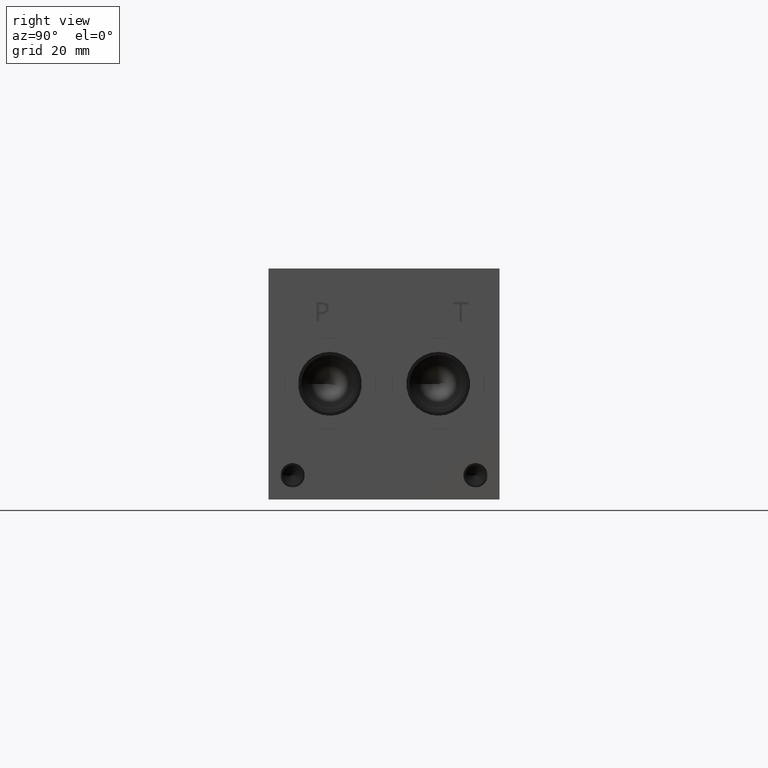
[diagram: clean part render]
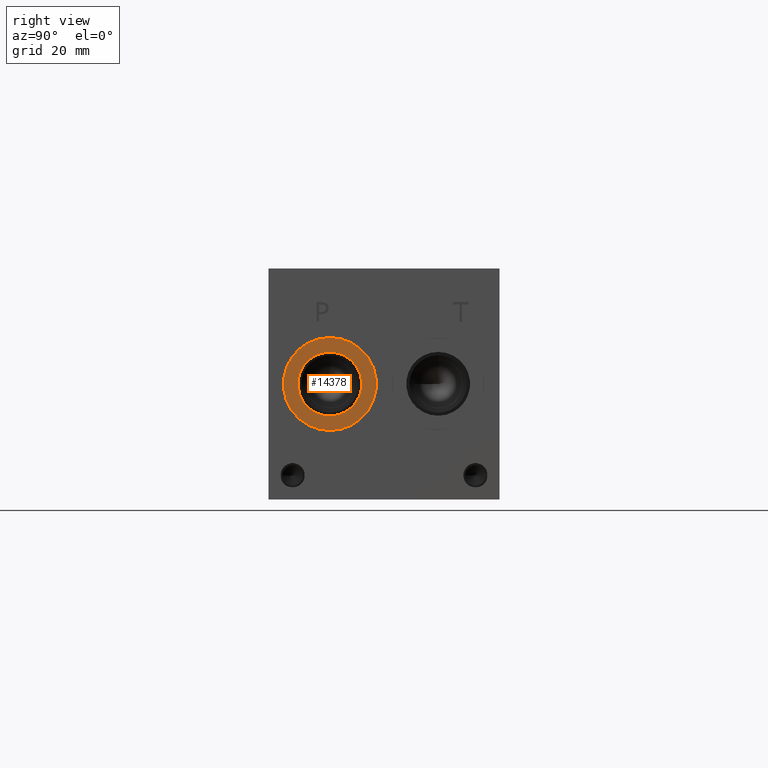
[diagram: same view with one face highlighted and labeled with its STEP entity id]
A machine part, right view. The second image highlights one B-rep face of the part: STEP entity #14378.
In plain terms, the highlighted planar face has unit normal (-1, 0, 0).
Its self-contained STEP definition (entity closure, byte-faithful):
#332=CIRCLE('',#15123,15.3416);
#333=CIRCLE('',#15124,15.3416);
#334=CIRCLE('',#15126,10.5283);
#335=CIRCLE('',#15127,10.5283);
#678=FACE_BOUND('',#2670,.T.);
#1832=FACE_OUTER_BOUND('',#2669,.T.);
#2669=EDGE_LOOP('',(#12074,#12075));
#2670=EDGE_LOOP('',(#12076,#12077));
#6540=VERTEX_POINT('',#24257);
#6541=VERTEX_POINT('',#24259);
#6542=VERTEX_POINT('',#24263);
#6543=VERTEX_POINT('',#24264);
#8470=EDGE_CURVE('',#6540,#6541,#332,.T.);
#8471=EDGE_CURVE('',#6541,#6540,#333,.T.);
#8472=EDGE_CURVE('',#6542,#6543,#334,.T.);
#8473=EDGE_CURVE('',#6543,#6542,#335,.T.);
#12074=ORIENTED_EDGE('',*,*,#8471,.F.);
#12075=ORIENTED_EDGE('',*,*,#8470,.F.);
#12076=ORIENTED_EDGE('',*,*,#8472,.T.);
#12077=ORIENTED_EDGE('',*,*,#8473,.T.);
#13242=PLANE('',#15125);
#14378=ADVANCED_FACE('',(#1832,#678),#13242,.F.);
#15123=AXIS2_PLACEMENT_3D('',#24260,#17852,#17853);
#15124=AXIS2_PLACEMENT_3D('',#24261,#17854,#17855);
#15125=AXIS2_PLACEMENT_3D('',#24262,#17856,#17857);
#15126=AXIS2_PLACEMENT_3D('',#24265,#17858,#17859);
#15127=AXIS2_PLACEMENT_3D('',#24266,#17860,#17861);
#17852=DIRECTION('center_axis',(-1.,0.,0.));
#17853=DIRECTION('ref_axis',(0.,0.,1.));
#17854=DIRECTION('center_axis',(-1.,0.,0.));
#17855=DIRECTION('ref_axis',(0.,0.,1.));
#17856=DIRECTION('center_axis',(-1.,0.,0.));
#17857=DIRECTION('ref_axis',(0.,0.,1.));
#17858=DIRECTION('center_axis',(-1.,0.,0.));
#17859=DIRECTION('ref_axis',(0.,0.,1.));
#17860=DIRECTION('center_axis',(-1.,0.,0.));
#17861=DIRECTION('ref_axis',(0.,0.,1.));
#24257=CARTESIAN_POINT('',(215.1126,20.2438,53.4416));
#24259=CARTESIAN_POINT('',(215.1126,20.2438,22.7584));
#24260=CARTESIAN_POINT('Origin',(215.1126,20.2438,38.1));
#24261=CARTESIAN_POINT('Origin',(215.1126,20.2438,38.1));
#24262=CARTESIAN_POINT('Origin',(215.1126,20.2438,27.5717));
#24263=CARTESIAN_POINT('',(215.1126,20.2438,27.5717));
#24264=CARTESIAN_POINT('',(215.1126,20.2438,48.6283));
#24265=CARTESIAN_POINT('Origin',(215.1126,20.2438,38.1));
#24266=CARTESIAN_POINT('Origin',(215.1126,20.2438,38.1));